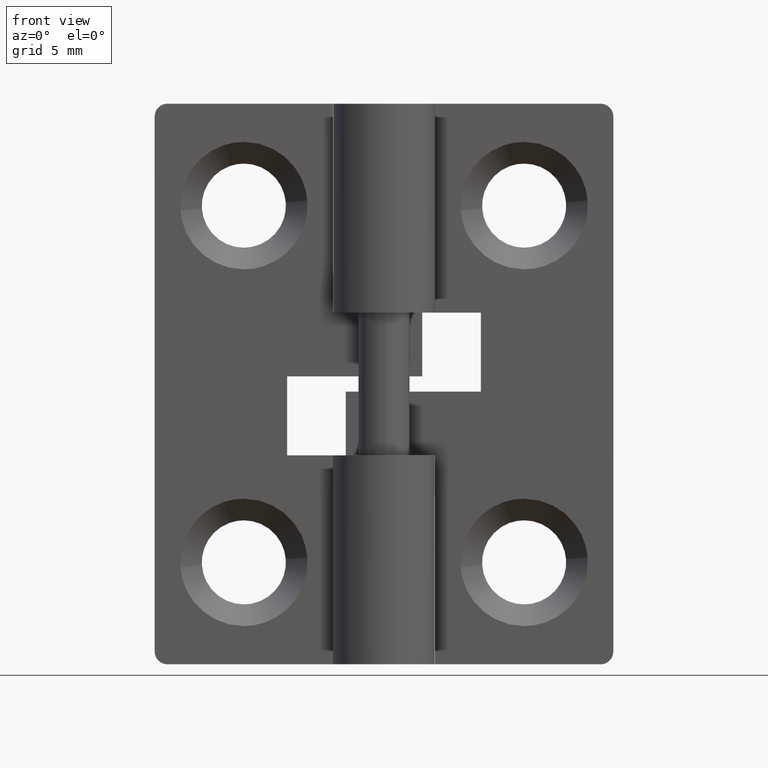
[diagram: clean part render]
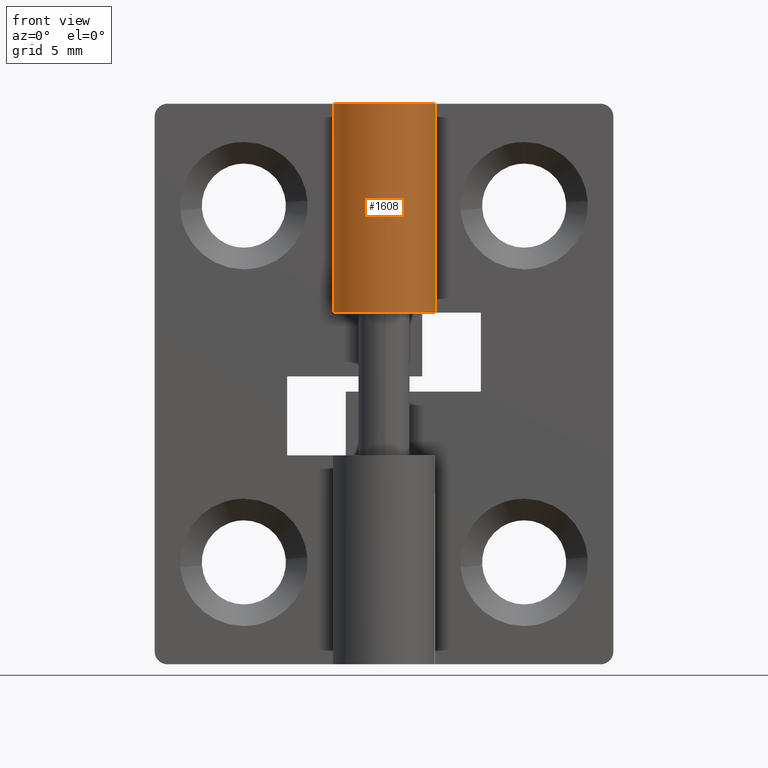
[diagram: same view with one face highlighted and labeled with its STEP entity id]
A machine part, front view. The second image highlights one B-rep face of the part: STEP entity #1608.
In plain terms, the highlighted face is a freeform B-spline surface patch.
Its self-contained STEP definition (entity closure, byte-faithful):
#1368=CARTESIAN_POINT('',(1.759971590679805,0.950000000000000,13.800002999999940));
#1369=VERTEX_POINT('',#1368);
#1370=CARTESIAN_POINT('',(0.0,2.0,13.800003000000000));
#1371=VERTEX_POINT('',#1370);
#1372=CARTESIAN_POINT('',(1.759971590679804,0.950000000000000,13.800002999999940));
#1373=CARTESIAN_POINT('',(2.483544518215584,-0.390492417103144,13.800002999999943));
#1374=CARTESIAN_POINT('',(1.383518044628769,-1.444256840103792,13.800002999999940));
#1375=CARTESIAN_POINT('',(0.283491571041955,-2.498021263104437,13.800002999999943));
#1376=CARTESIAN_POINT('',(-1.024695076595959,-1.717556403731767,13.800002999999940));
#1377=CARTESIAN_POINT('',(-2.332881724233873,-0.937091544359097,13.800002999999943));
#1378=CARTESIAN_POINT('',(-1.928096575312494,0.531454227820451,13.800002999999940));
#1379=CARTESIAN_POINT('',(-1.523311426391115,2.000000000000000,13.800002999999943));
#1380=CARTESIAN_POINT('',(0.0,2.0,13.800003000000000));
#1388=(BOUNDED_CURVE()B_SPLINE_CURVE(2,(#1372,#1373,#1374,#1375,#1376,#1377,#1378,#1379,#1380),.UNSPECIFIED.,.F.,.U.)B_SPLINE_CURVE_WITH_KNOTS((3,2,2,2,3),(0.0,0.250000000000000,0.500000000000000,0.750000000000000,1.0),.UNSPECIFIED.)CURVE()GEOMETRIC_REPRESENTATION_ITEM()RATIONAL_B_SPLINE_CURVE((1.0,0.795527219493534,1.0,0.795527219493534,1.0,0.795527219493534,1.0,0.795527219493534,1.0))REPRESENTATION_ITEM(''));
#1389=EDGE_CURVE('',#1369,#1371,#1388,.T.);
#1446=CARTESIAN_POINT('',(0.0,2.0,22.0));
#1447=VERTEX_POINT('',#1446);
#1453=CARTESIAN_POINT('',(1.759971590679805,0.950000000000000,22.0));
#1454=VERTEX_POINT('',#1453);
#1455=CARTESIAN_POINT('',(0.0,2.0,22.0));
#1456=CARTESIAN_POINT('',(-1.523311426391113,2.000000000000000,22.000000000000011));
#1457=CARTESIAN_POINT('',(-1.928096575312494,0.531454227820452,22.0));
#1458=CARTESIAN_POINT('',(-2.332881724233873,-0.937091544359094,22.000000000000011));
#1459=CARTESIAN_POINT('',(-1.024695076595961,-1.717556403731766,22.0));
#1460=CARTESIAN_POINT('',(0.283491571041951,-2.498021263104438,22.000000000000011));
#1461=CARTESIAN_POINT('',(1.383518044628767,-1.444256840103794,22.0));
#1462=CARTESIAN_POINT('',(2.483544518215582,-0.390492417103149,22.000000000000011));
#1463=CARTESIAN_POINT('',(1.759971590679806,0.949999999999997,22.0));
#1471=(BOUNDED_CURVE()B_SPLINE_CURVE(2,(#1455,#1456,#1457,#1458,#1459,#1460,#1461,#1462,#1463),.UNSPECIFIED.,.F.,.U.)B_SPLINE_CURVE_WITH_KNOTS((3,2,2,2,3),(0.0,0.250000000000000,0.500000000000000,0.750000000000000,1.0),.UNSPECIFIED.)CURVE()GEOMETRIC_REPRESENTATION_ITEM()RATIONAL_B_SPLINE_CURVE((1.0,0.795527219493534,1.0,0.795527219493534,1.0,0.795527219493534,1.0,0.795527219493534,1.0))REPRESENTATION_ITEM(''));
#1472=EDGE_CURVE('',#1447,#1454,#1471,.T.);
#1568=CARTESIAN_POINT('',(1.759971590679805,0.950000000000000,13.800002999999940));
#1569=CARTESIAN_POINT('',(1.759971590679805,0.950000000000000,22.0));
#1570=QUASI_UNIFORM_CURVE('',1,(#1568,#1569),.UNSPECIFIED.,.F.,.U.);
#1571=EDGE_CURVE('',#1369,#1454,#1570,.T.);
#1576=CARTESIAN_POINT('',(1.723258320883051,1.015076725921408,13.595003074999941));
#1577=CARTESIAN_POINT('',(1.723258320883051,1.015076725921408,22.210124923125012));
#1578=CARTESIAN_POINT('',(2.969344769301742,-1.100358281051034,13.595003074999941));
#1579=CARTESIAN_POINT('',(2.969344769301742,-1.100358281051034,22.210124923125004));
#1580=CARTESIAN_POINT('',(0.645632757753657,-1.892923226682848,13.595003074999941));
#1581=CARTESIAN_POINT('',(0.645632757753657,-1.892923226682848,22.210124923125012));
#1582=CARTESIAN_POINT('',(-1.678079253794428,-2.685488172314661,13.595003074999941));
#1583=CARTESIAN_POINT('',(-1.678079253794428,-2.685488172314661,22.210124923125004));
#1584=CARTESIAN_POINT('',(-1.984374898665018,-0.249512046899941,13.595003074999941));
#1585=CARTESIAN_POINT('',(-1.984374898665018,-0.249512046899941,22.210124923125012));
#1586=CARTESIAN_POINT('',(-2.290670543535608,2.186464078514781,13.595003074999941));
#1587=CARTESIAN_POINT('',(-2.290670543535608,2.186464078514781,22.210124923125004));
#1588=CARTESIAN_POINT('',(0.156918191455691,1.993834667466256,13.595003074999941));
#1589=CARTESIAN_POINT('',(0.156918191455691,1.993834667466256,22.210124923125012));
#1597=(BOUNDED_SURFACE()B_SPLINE_SURFACE(1,2,((#1576,#1578,#1580,#1582,#1584,#1586,#1588),(#1577,#1579,#1581,#1583,#1585,#1587,#1589)),.UNSPECIFIED.,.F.,.F.,.U.)B_SPLINE_SURFACE_WITH_KNOTS((2,2),(3,2,2,3),(0.0,8.615121848125069),(0.0,3.801531476131832,7.603062952263665,11.404594428395500),.UNSPECIFIED.)GEOMETRIC_REPRESENTATION_ITEM()RATIONAL_B_SPLINE_SURFACE(((1.0,0.631578351302498,1.0,0.631578351302498,1.0,0.631578351302498,1.0),(1.0,0.631578351302498,1.0,0.631578351302498,1.0,0.631578351302498,1.0)))REPRESENTATION_ITEM('')SURFACE());
#1598=ORIENTED_EDGE('',*,*,#1389,.F.);
#1599=ORIENTED_EDGE('',*,*,#1571,.T.);
#1600=ORIENTED_EDGE('',*,*,#1472,.F.);
#1601=CARTESIAN_POINT('',(0.0,2.0,13.800003000000000));
#1602=CARTESIAN_POINT('',(0.0,2.0,22.0));
#1603=QUASI_UNIFORM_CURVE('',1,(#1601,#1602),.UNSPECIFIED.,.F.,.U.);
#1604=EDGE_CURVE('',#1371,#1447,#1603,.T.);
#1605=ORIENTED_EDGE('',*,*,#1604,.F.);
#1606=EDGE_LOOP('',(#1598,#1599,#1600,#1605));
#1607=FACE_OUTER_BOUND('',#1606,.T.);
#1608=ADVANCED_FACE('',(#1607),#1597,.T.);